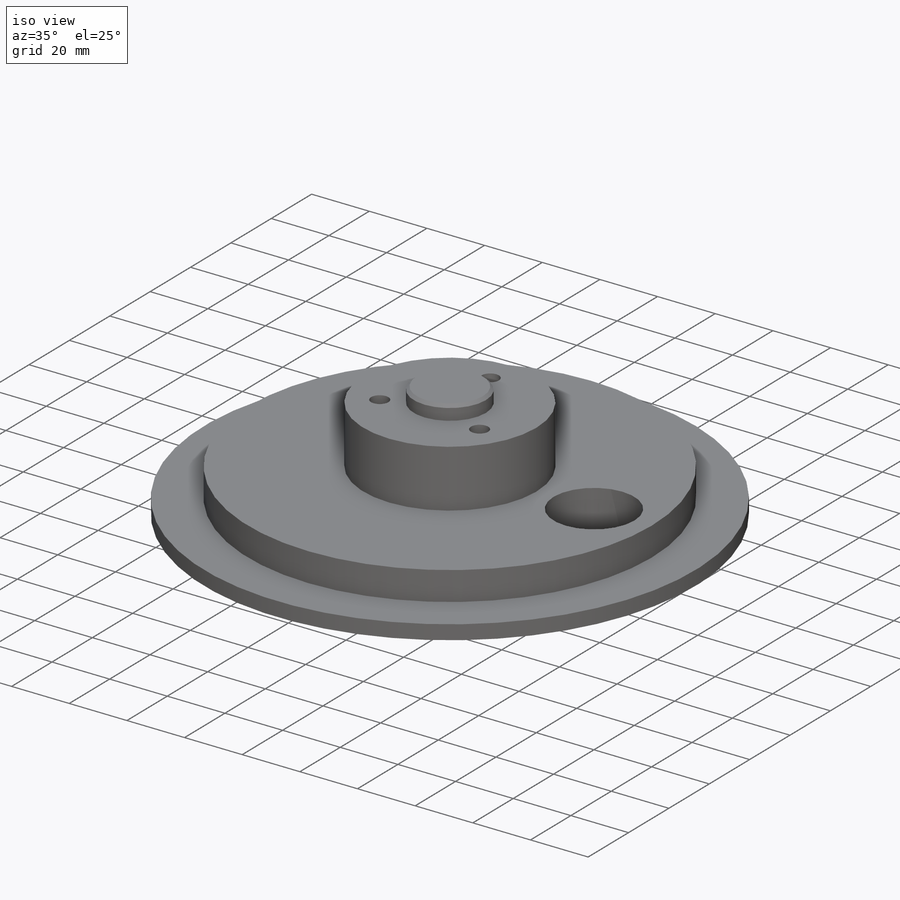
[diagram: iso view]
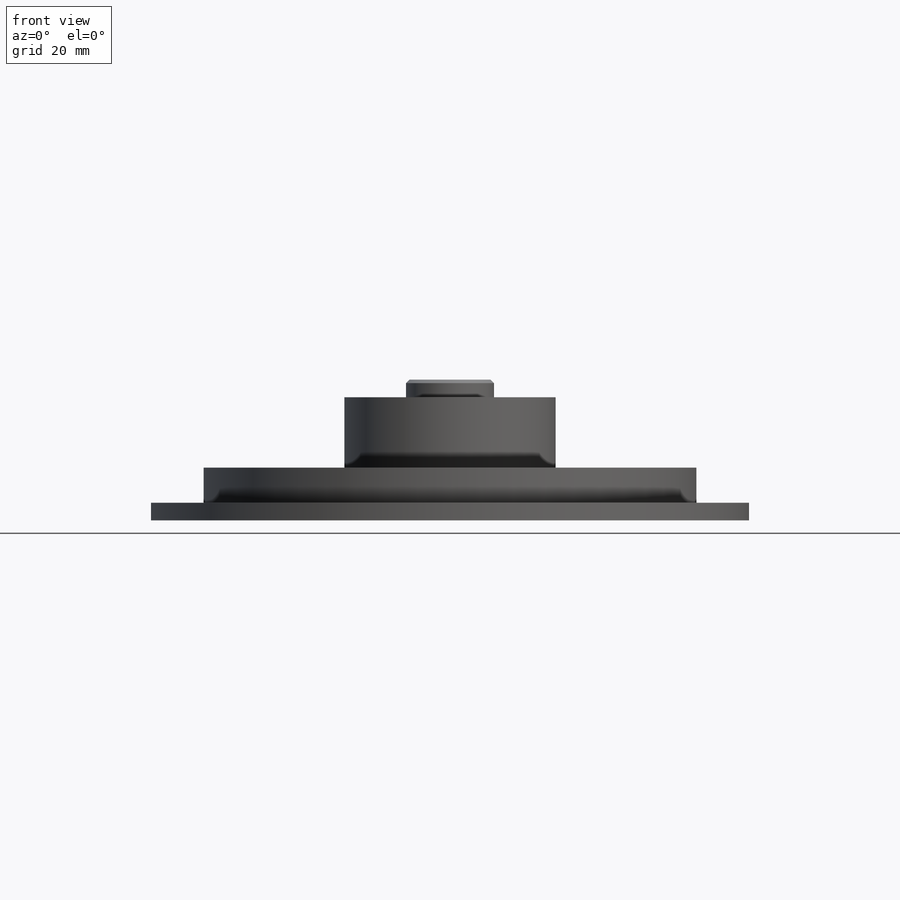
[diagram: front view]
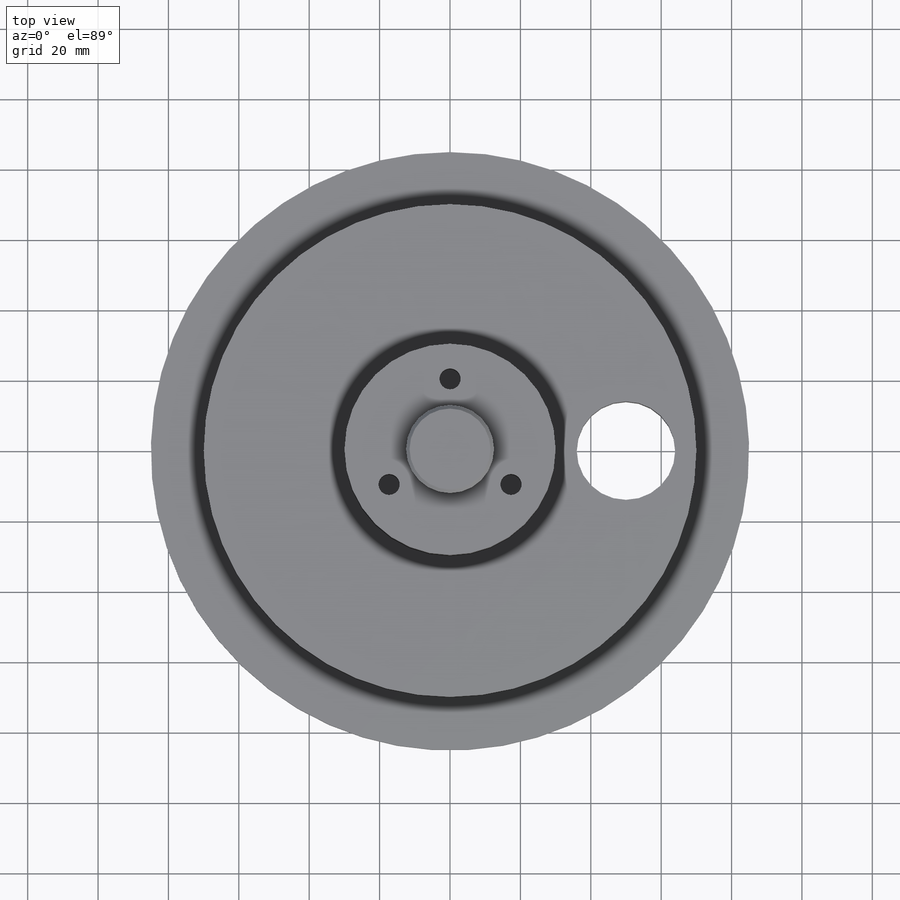
[diagram: top view]
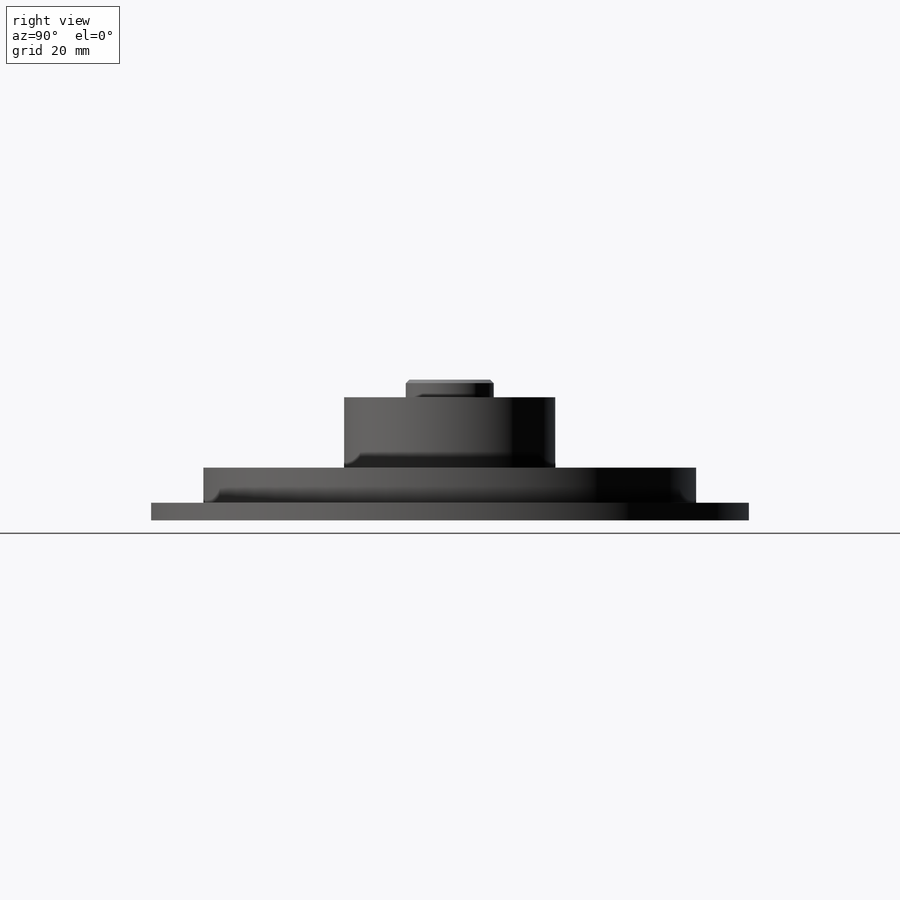
[diagram: right view]
SOLIDWORKS PART (.sldprt)
format: sldprt  version: not decoded by parser v0  size: 239,616 bytes
history: native  units: mm
features: sketch x5, plane x3, cut_extrude x2, extrude x2, material x1, revolve x1, chamfer x1 (+9 scaffold rows collapsed)
feature tree (24):
  scaffold x9  (default folders/planes/origin — collapsed)
  material  "普通碳钢"
  plane  "前视基准面"
  plane  "上视基准面"
  plane  "右视基准面"
  sketch  "草图1"  dims[c1.D1=90.0mm c1.D2=80.0mm c1.D3=5.0mm c1.D4=10.0mm c1.D5=15.0mm c1.D6=46.0mm c1.D7=~5.480893mm c2.D1=85.0mm c2.D2=70.0mm]
  revolve  "旋转1"  Angle=360deg
  sketch  "草图2"  dims[c1.D3=28.0mm c1.D4=100.0mm c1.D1=100.0mm c2.D4=15.0mm c2.D2=15.0mm c3.D4=6.0mm c3.D2=28.0mm c3.D1=40.0mm c4.D2=16.0mm]
  cut_extrude  "切除-拉伸1"  Depth=20mm
  sketch  "草图3"  dims[D1=60.0mm]
  extrude  "凸台-拉伸1"  Depth=20mm
  sketch  "草图4"  dims[D1=25.0mm]
  extrude  "凸台-拉伸2"  Depth=5mm
  chamfer  "倒角1"  Distance=1mm Angle=45deg
  sketch  "草图5"  dims[D1=40.0mm D2=6.0mm D3=3.0]
  cut_extrude  "切除-拉伸2"  Depth=15mm
decode coverage: 11 of 11 modeling features carry decoded parameters
note: ~ marks probable driven/reference dimensions
note: suppression state not decoded; provenance and decode notes live in map.json
